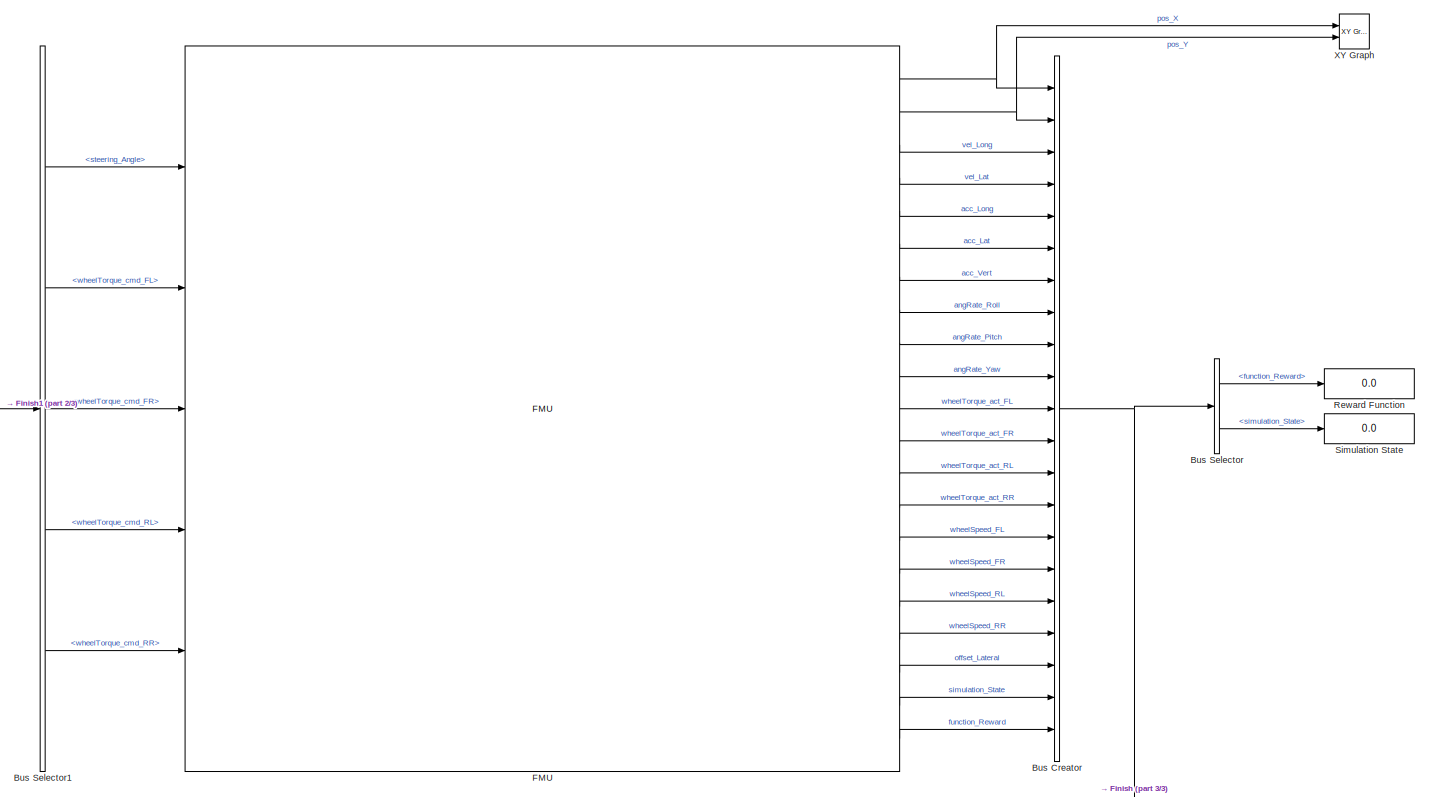
[diagram: root canvas - part 1/3, most of the canvas]
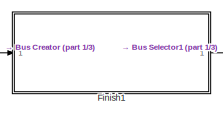
[diagram: root canvas - part 2/3, middle left region]
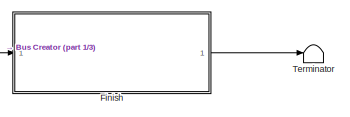
[diagram: root canvas - part 3/3, bottom center region]
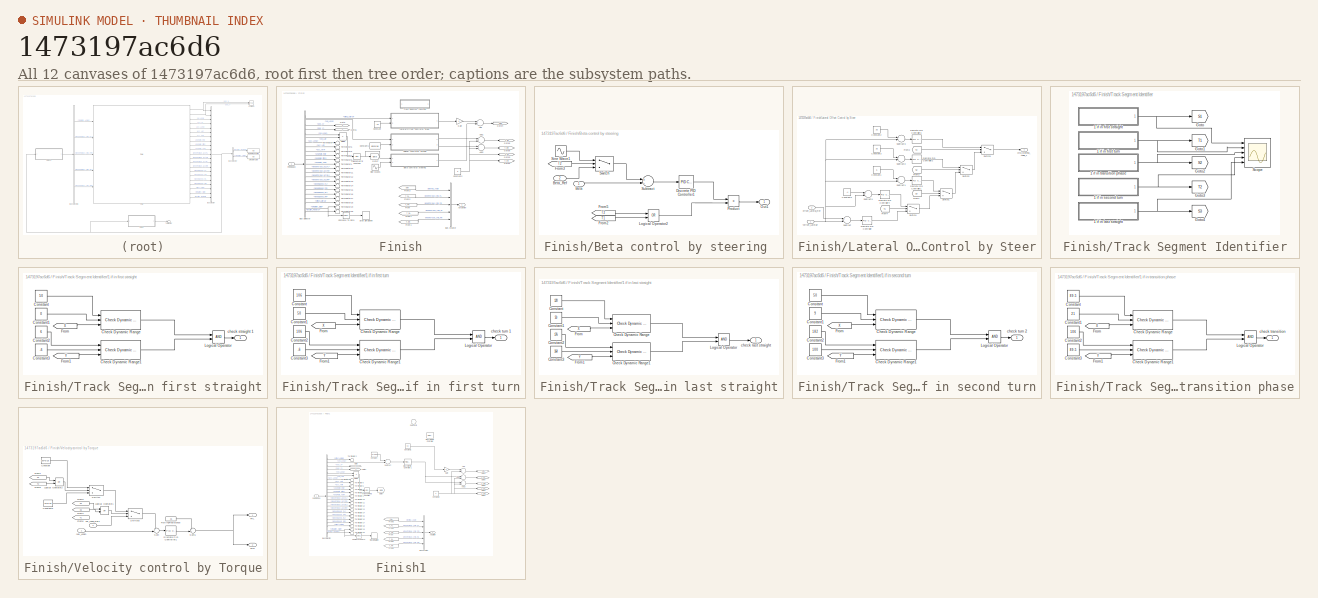
[diagram: thumbnail index - all 12 canvases of the model, root first then tree order]
MODEL slx_1473197ac6d6
KIND model
CONFIG AbsTol = auto
CONFIG EnableMultiTasking = off
CONFIG FixedStep = 0.01
CONFIG MaxStep = auto
CONFIG MinStep = auto
CONFIG RelTol = 1e-3
CONFIG SampleTimeConstraint = Unconstrained
CONFIG Solver = FixedStepDiscrete
CONFIG SolverName = FixedStepDiscrete
CONFIG StartTime = 0.0
CONFIG StopTime = inf
BLOCK [BusCreator] Bus Creator
  DisplayOption = bar
  InheritFromInputs = on
  Inputs = 21
  Ports = [21, 1]
BLOCK [BusSelector] Bus Selector
  OutputAsBus = off
  OutputSignals = function_Reward,simulation_State
  Ports = [1, 2]
BLOCK [BusSelector] Bus Selector1
  OutputAsBus = off
  OutputSignals = steering_Angle,wheelTorque_cmd_FL,wheelTorque_cmd_FR,wheelTorque_cmd_RL,wheelTorque_cmd_RR
  Ports = [1, 5]
BLOCK [FMU] FMU
  FMUDebugLogging = on
  FMUMode = CoSimulation
  FMUName = MED2018_VehicleModel.fmu
  FMUSampleTime = -1
  MaskDisplay = if (exist([Simulink.fileGenControl('get','CacheFolder') '\slprj\_fmu\4f2b449fb32afa678e4265196a9a6b74\MED2018_VehicleModel\model.png'],'file'))\n    image([Simulink.fileGenControl('get','CacheFolder') '\slprj\_fmu\4f2b449fb32afa678e4265196a9a6b74\MED2018_VehicleModel\model.png']);\n    text(0.03, 0.97, 'MED2018.VehicleModel', 'horizontalAlignment', 'left', 'verticalAlignment', 'top');\nelse\n    disp(...<+1077ch>
  MaskPromptString = Communication StepsizeCommunication stepsize between FMU and Simulink
  MaskType = MED2018.VehicleModel [Co-Simulation, v2.0]
  Ports = [5, 21]
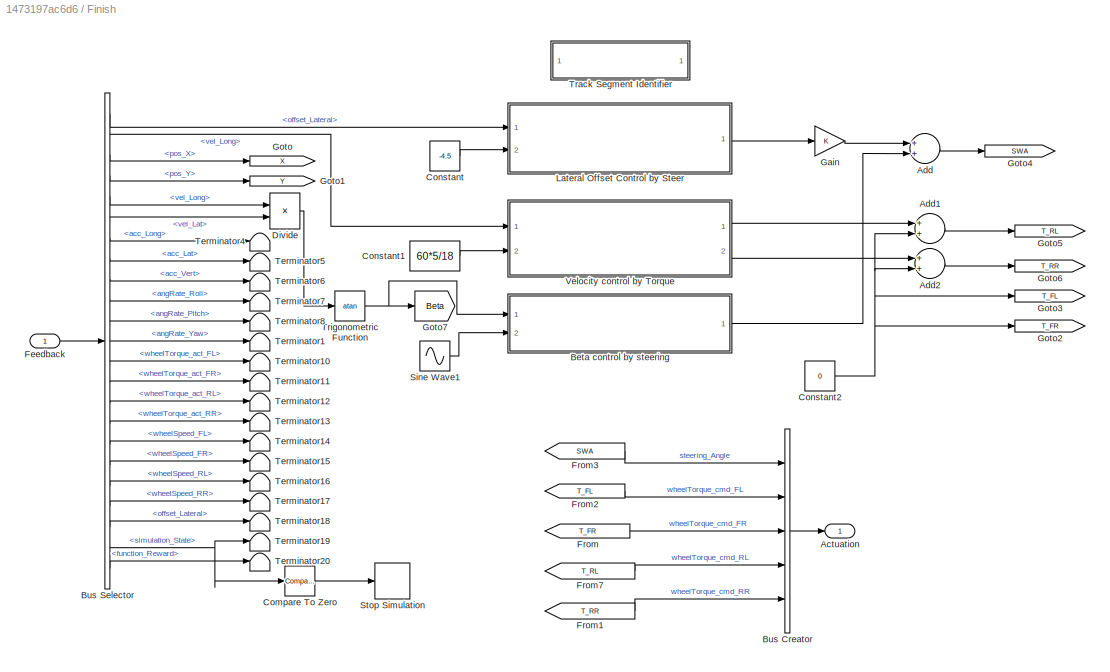
BLOCK [SubSystem] Finish
  Commented = on
  Ports = [1, 1]
  RequestExecContextInheritance = off
  Variant = off
BLOCK [Outport] Finish/Actuation
  IconDisplay = Port number
BLOCK [Sum] Finish/Add
  InputSameDT = off
  OutDataTypeStr = Inherit: Inherit via internal rule
  Ports = [2, 1]
  SaturateOnIntegerOverflow = off
BLOCK [Sum] Finish/Add1
  InputSameDT = off
  OutDataTypeStr = Inherit: Inherit via internal rule
  Ports = [2, 1]
  SaturateOnIntegerOverflow = off
BLOCK [Sum] Finish/Add2
  InputSameDT = off
  OutDataTypeStr = Inherit: Inherit via internal rule
  Ports = [2, 1]
  SaturateOnIntegerOverflow = off
BLOCK [SubSystem] Finish/Beta control by steering 
  Ports = [2, 1]
  RequestExecContextInheritance = off
  Variant = off
BLOCK [Inport] Finish/Beta control by steering /Beta
  IconDisplay = Port number
BLOCK [Inport] Finish/Beta control by steering /Beta_Ref
  IconDisplay = Port number
  Port = 2
BLOCK [Reference] Finish/Beta control by steering /Discrete PID Controller1  REF=simulink/Continuous/PID Controller
  Ports = [1, 1]
  SourceBlock = simulink/Continuous/PID Controller
  SourceProductBaseCode = SL
  SourceProductName = Simulink
  SourceType = PID 1dof
BLOCK [From] Finish/Beta control by steering /From2
  GotoTag = T1
  TagVisibility = global
BLOCK [From] Finish/Beta control by steering /From3
  GotoTag = T2
  TagVisibility = global
BLOCK [From] Finish/Beta control by steering /From5
  GotoTag = T2
  TagVisibility = global
BLOCK [Logic] Finish/Beta control by steering /Logical Operator2
  AllPortsSameDT = off
  Operator = OR
  OutDataTypeStr = boolean
  Ports = [2, 1]
BLOCK [Outport] Finish/Beta control by steering /Out1
  IconDisplay = Port number
BLOCK [Product] Finish/Beta control by steering /Product
  InputSameDT = off
  OutDataTypeStr = Inherit: Inherit via internal rule
  Ports = [2, 1]
  RndMeth = Floor
  SaturateOnIntegerOverflow = off
BLOCK [Sin] Finish/Beta control by steering /Sine Wave1
  Amplitude = -0.1
  Ports = [0, 1]
  SampleTime = 0
BLOCK [Sum] Finish/Beta control by steering /Subtract
  InputSameDT = off
  Inputs = +-
  OutDataTypeStr = Inherit: Inherit via internal rule
  Ports = [2, 1]
  SaturateOnIntegerOverflow = off
BLOCK [Switch] Finish/Beta control by steering /Switch
  Criteria = u2 > Threshold
  InputSameDT = off
  SaturateOnIntegerOverflow = off
BLOCK [BusCreator] Finish/Bus Creator
  DisplayOption = bar
  InheritFromInputs = on
  Inputs = 5
  Ports = [5, 1]
BLOCK [BusSelector] Finish/Bus Selector
  OutputAsBus = off
  OutputSignals = offset_Lateral,vel_Long,pos_X,pos_Y,vel_Long,vel_Lat,acc_Long,acc_Lat,acc_Vert,angRate_Roll,angRate_Pitch,angRate_Yaw,wheelTorque_act_FL,wheelTorque_act_FR,wheelTorque_act_RL,wheelTorque_act_RR,wheelSpeed_FL,wheelSpeed_FR,wheelSpeed_RL,wheelSpeed_RR,offset_Lateral,simulation_State,function_Reward
  Ports = [1, 23]
BLOCK [Reference] Finish/Compare To Zero  REF=simulink/Logic and Bit
Operations/Compare
To Zero
  Ports = [1, 1]
  SourceBlock = simulink/Logic and Bit\nOperations/Compare\nTo Zero
  SourceProductBaseCode = SL
  SourceProductName = Simulink
  SourceType = Compare To Zero
BLOCK [Constant] Finish/Constant
  Value = -4.5
BLOCK [Constant] Finish/Constant1
  Value = 60*5/18
BLOCK [Constant] Finish/Constant2
  Value = 0
BLOCK [Product] Finish/Divide
  InputSameDT = off
  Inputs = /*
  OutDataTypeStr = Inherit: Inherit via internal rule
  Ports = [2, 1]
  RndMeth = Floor
  SaturateOnIntegerOverflow = off
BLOCK [Inport] Finish/Feedback
  IconDisplay = Port number
BLOCK [From] Finish/From
  GotoTag = T_FR
BLOCK [From] Finish/From1
  GotoTag = T_RR
BLOCK [From] Finish/From2
  GotoTag = T_FL
BLOCK [From] Finish/From3
  GotoTag = SWA
BLOCK [From] Finish/From7
  GotoTag = T_RL
BLOCK [Gain] Finish/Gain
  OutDataTypeStr = Inherit: Inherit via internal rule
  ParamDataTypeStr = Inherit: Inherit via internal rule
  SaturateOnIntegerOverflow = off
BLOCK [Goto] Finish/Goto
  GotoTag = X
  TagVisibility = global
BLOCK [Goto] Finish/Goto1
  GotoTag = Y
  TagVisibility = global
BLOCK [Goto] Finish/Goto2
  GotoTag = T_FR
BLOCK [Goto] Finish/Goto3
  GotoTag = T_FL
BLOCK [Goto] Finish/Goto4
  GotoTag = SWA
BLOCK [Goto] Finish/Goto5
  GotoTag = T_RL
BLOCK [Goto] Finish/Goto6
  GotoTag = T_RR
BLOCK [Goto] Finish/Goto7
  GotoTag = Beta
  TagVisibility = global
BLOCK [SubSystem] Finish/Lateral Offset Control by Steer
  Ports = [2, 1]
  RequestExecContextInheritance = off
  Variant = off
BLOCK [Inport] Finish/Lateral Offset Control by Steer/<offset_Lateral>
  IconDisplay = Port number
BLOCK [Constant] Finish/Lateral Offset Control by Steer/Constant1
  Value = 5
BLOCK [Constant] Finish/Lateral Offset Control by Steer/Constant2
  Value = 3.5
BLOCK [Constant] Finish/Lateral Offset Control by Steer/Constant3
  Value = 3.5
BLOCK [Constant] Finish/Lateral Offset Control by Steer/Constant4
  Value = -4
BLOCK [Reference] Finish/Lateral Offset Control by Steer/Discrete PID Controller  REF=simulink/Continuous/PID Controller
  Ports = [1, 1]
  SourceBlock = simulink/Continuous/PID Controller
  SourceProductBaseCode = SL
  SourceProductName = Simulink
  SourceType = PID 1dof
BLOCK [Reference] Finish/Lateral Offset Control by Steer/Discrete PID Controller1  REF=simulink/Continuous/PID Controller
  Ports = [1, 1]
  SourceBlock = simulink/Continuous/PID Controller
  SourceProductBaseCode = SL
  SourceProductName = Simulink
  SourceType = PID 1dof
BLOCK [Reference] Finish/Lateral Offset Control by Steer/Discrete PID Controller2  REF=simulink/Continuous/PID Controller
  Ports = [1, 1]
  SourceBlock = simulink/Continuous/PID Controller
  SourceProductBaseCode = SL
  SourceProductName = Simulink
  SourceType = PID 1dof
BLOCK [Reference] Finish/Lateral Offset Control by Steer/Discrete PID Controller3  REF=simulink/Continuous/PID Controller
  Ports = [1, 1]
  SourceBlock = simulink/Continuous/PID Controller
  SourceProductBaseCode = SL
  SourceProductName = Simulink
  SourceType = PID 1dof
BLOCK [Reference] Finish/Lateral Offset Control by Steer/Discrete PID Controller4  REF=simulink/Continuous/PID Controller
  Ports = [1, 1]
  SourceBlock = simulink/Continuous/PID Controller
  SourceProductBaseCode = SL
  SourceProductName = Simulink
  SourceType = PID 1dof
BLOCK [From] Finish/Lateral Offset Control by Steer/From1
  GotoTag = S3
  TagVisibility = global
BLOCK [From] Finish/Lateral Offset Control by Steer/From2
  GotoTag = T2
  TagVisibility = global
BLOCK [From] Finish/Lateral Offset Control by Steer/From3
  GotoTag = S2
  TagVisibility = global
BLOCK [From] Finish/Lateral Offset Control by Steer/From4
  GotoTag = T1
  TagVisibility = global
BLOCK [Sum] Finish/Lateral Offset Control by Steer/Subtract
  InputSameDT = off
  Inputs = +-
  OutDataTypeStr = Inherit: Inherit via internal rule
  Ports = [2, 1]
  SaturateOnIntegerOverflow = off
BLOCK [Sum] Finish/Lateral Offset Control by Steer/Subtract1
  InputSameDT = off
  Inputs = +-
  OutDataTypeStr = Inherit: Inherit via internal rule
  Ports = [2, 1]
  SaturateOnIntegerOverflow = off
BLOCK [Sum] Finish/Lateral Offset Control by Steer/Subtract2
  InputSameDT = off
  Inputs = +-
  OutDataTypeStr = Inherit: Inherit via internal rule
  Ports = [2, 1]
  SaturateOnIntegerOverflow = off
BLOCK [Sum] Finish/Lateral Offset Control by Steer/Subtract3
  InputSameDT = off
  Inputs = +-
  OutDataTypeStr = Inherit: Inherit via internal rule
  Ports = [2, 1]
  SaturateOnIntegerOverflow = off
BLOCK [Sum] Finish/Lateral Offset Control by Steer/Subtract4
  InputSameDT = off
  Inputs = +-
  OutDataTypeStr = Inherit: Inherit via internal rule
  Ports = [2, 1]
  SaturateOnIntegerOverflow = off
BLOCK [Switch] Finish/Lateral Offset Control by Steer/Switch1
  Criteria = u2 > Threshold
  InputSameDT = off
  SaturateOnIntegerOverflow = off
BLOCK [Switch] Finish/Lateral Offset Control by Steer/Switch2
  Criteria = u2 > Threshold
  InputSameDT = off
  SaturateOnIntegerOverflow = off
BLOCK [Switch] Finish/Lateral Offset Control by Steer/Switch3
  Criteria = u2 > Threshold
  InputSameDT = off
  SaturateOnIntegerOverflow = off
BLOCK [Switch] Finish/Lateral Offset Control by Steer/Switch4
  Criteria = u2 > Threshold
  InputSameDT = off
  SaturateOnIntegerOverflow = off
BLOCK [Outport] Finish/Lateral Offset Control by Steer/cmd_steering_Angle_1
  IconDisplay = Port number
BLOCK [Inport] Finish/Lateral Offset Control by Steer/offset_Lateral_Ref
  IconDisplay = Port number
  Port = 2
BLOCK [Sin] Finish/Sine Wave1
  Amplitude = 0.1
  Ports = [0, 1]
  SampleTime = 0
BLOCK [Stop] Finish/Stop Simulation
BLOCK [Terminator] Finish/Terminator1
BLOCK [Terminator] Finish/Terminator10
BLOCK [Terminator] Finish/Terminator11
BLOCK [Terminator] Finish/Terminator12
BLOCK [Terminator] Finish/Terminator13
BLOCK [Terminator] Finish/Terminator14
BLOCK [Terminator] Finish/Terminator15
BLOCK [Terminator] Finish/Terminator16
BLOCK [Terminator] Finish/Terminator17
BLOCK [Terminator] Finish/Terminator18
BLOCK [Terminator] Finish/Terminator19
BLOCK [Terminator] Finish/Terminator20
BLOCK [Terminator] Finish/Terminator4
BLOCK [Terminator] Finish/Terminator5
BLOCK [Terminator] Finish/Terminator6
BLOCK [Terminator] Finish/Terminator7
BLOCK [Terminator] Finish/Terminator8
BLOCK [SubSystem] Finish/Track Segment Identifier
  Ports = []
  RequestExecContextInheritance = off
  Variant = off
BLOCK [SubSystem] Finish/Track Segment Identifier/1 if in first straight
  Ports = [0, 1]
  RequestExecContextInheritance = off
  Variant = off
BLOCK [Reference] Finish/Track Segment Identifier/1 if in first straight/Check Dynamic Range  REF=simulink/Model
Verification/Check 
Dynamic Range
  Description = min < u < max
  Ports = [3, 1]
  SourceBlock = simulink/Model\nVerification/Check \nDynamic Range
  SourceProductBaseCode = SL
  SourceProductName = Simulink
  SourceType = Checks_DRange
BLOCK [Reference] Finish/Track Segment Identifier/1 if in first straight/Check Dynamic Range1  REF=simulink/Model
Verification/Check 
Dynamic Range
  Description = min < u < max
  Ports = [3, 1]
  SourceBlock = simulink/Model\nVerification/Check \nDynamic Range
  SourceProductBaseCode = SL
  SourceProductName = Simulink
  SourceType = Checks_DRange
BLOCK [Constant] Finish/Track Segment Identifier/1 if in first straight/Constant
  Value = 50
BLOCK [Constant] Finish/Track Segment Identifier/1 if in first straight/Constant1
  Value = 0
BLOCK [Constant] Finish/Track Segment Identifier/1 if in first straight/Constant2
  Value = 6
BLOCK [Constant] Finish/Track Segment Identifier/1 if in first straight/Constant3
  Value = -6
BLOCK [From] Finish/Track Segment Identifier/1 if in first straight/From
  GotoTag = X
  TagVisibility = global
BLOCK [From] Finish/Track Segment Identifier/1 if in first straight/From1
  GotoTag = Y
  TagVisibility = global
BLOCK [Logic] Finish/Track Segment Identifier/1 if in first straight/Logical Operator
  AllPortsSameDT = off
  OutDataTypeStr = boolean
  Ports = [2, 1]
BLOCK [Outport] Finish/Track Segment Identifier/1 if in first straight/check straight 1
  IconDisplay = Port number
BLOCK [SubSystem] Finish/Track Segment Identifier/1 if in first turn
  Ports = [0, 1]
  RequestExecContextInheritance = off
  Variant = off
BLOCK [Reference] Finish/Track Segment Identifier/1 if in first turn/Check Dynamic Range  REF=simulink/Model
Verification/Check 
Dynamic Range
  Description = min < u < max
  Ports = [3, 1]
  SourceBlock = simulink/Model\nVerification/Check \nDynamic Range
  SourceProductBaseCode = SL
  SourceProductName = Simulink
  SourceType = Checks_DRange
BLOCK [Reference] Finish/Track Segment Identifier/1 if in first turn/Check Dynamic Range1  REF=simulink/Model
Verification/Check 
Dynamic Range
  Description = min < u < max
  Ports = [3, 1]
  SourceBlock = simulink/Model\nVerification/Check \nDynamic Range
  SourceProductBaseCode = SL
  SourceProductName = Simulink
  SourceType = Checks_DRange
BLOCK [Constant] Finish/Track Segment Identifier/1 if in first turn/Constant
  Value = 106
BLOCK [Constant] Finish/Track Segment Identifier/1 if in first turn/Constant1
  Value = 50
BLOCK [Constant] Finish/Track Segment Identifier/1 if in first turn/Constant2
  Value = 106
BLOCK [Constant] Finish/Track Segment Identifier/1 if in first turn/Constant3
  Value = -6
BLOCK [From] Finish/Track Segment Identifier/1 if in first turn/From
  GotoTag = X
  TagVisibility = global
BLOCK [From] Finish/Track Segment Identifier/1 if in first turn/From1
  GotoTag = Y
  TagVisibility = global
BLOCK [Logic] Finish/Track Segment Identifier/1 if in first turn/Logical Operator
  AllPortsSameDT = off
  OutDataTypeStr = boolean
  Ports = [2, 1]
BLOCK [Outport] Finish/Track Segment Identifier/1 if in first turn/check turn 1
  IconDisplay = Port number
BLOCK [SubSystem] Finish/Track Segment Identifier/1 if in last straight
  Ports = [0, 1]
  RequestExecContextInheritance = off
  Variant = off
BLOCK [Reference] Finish/Track Segment Identifier/1 if in last straight/Check Dynamic Range  REF=simulink/Model
Verification/Check 
Dynamic Range
  Description = min < u < max
  Ports = [3, 1]
  SourceBlock = simulink/Model\nVerification/Check \nDynamic Range
  SourceProductBaseCode = SL
  SourceProductName = Simulink
  SourceType = Checks_DRange
BLOCK [Reference] Finish/Track Segment Identifier/1 if in last straight/Check Dynamic Range1  REF=simulink/Model
Verification/Check 
Dynamic Range
  Description = min < u < max
  Ports = [3, 1]
  SourceBlock = simulink/Model\nVerification/Check \nDynamic Range
  SourceProductBaseCode = SL
  SourceProductName = Simulink
  SourceType = Checks_DRange
BLOCK [Constant] Finish/Track Segment Identifier/1 if in last straight/Constant
  Value = 120
BLOCK [Constant] Finish/Track Segment Identifier/1 if in last straight/Constant1
  Value = 50
BLOCK [Constant] Finish/Track Segment Identifier/1 if in last straight/Constant2
  Value = 176
BLOCK [Constant] Finish/Track Segment Identifier/1 if in last straight/Constant3
  Value = 164
BLOCK [From] Finish/Track Segment Identifier/1 if in last straight/From
  GotoTag = X
  TagVisibility = global
BLOCK [From] Finish/Track Segment Identifier/1 if in last straight/From1
  GotoTag = Y
  TagVisibility = global
BLOCK [Logic] Finish/Track Segment Identifier/1 if in last straight/Logical Operator
  AllPortsSameDT = off
  OutDataTypeStr = boolean
  Ports = [2, 1]
BLOCK [Outport] Finish/Track Segment Identifier/1 if in last straight/check last straight
  IconDisplay = Port number
BLOCK [SubSystem] Finish/Track Segment Identifier/1 if in second turn
  Ports = [0, 1]
  RequestExecContextInheritance = off
  Variant = off
BLOCK [Reference] Finish/Track Segment Identifier/1 if in second turn/Check Dynamic Range  REF=simulink/Model
Verification/Check 
Dynamic Range
  Description = min < u < max
  Ports = [3, 1]
  SourceBlock = simulink/Model\nVerification/Check \nDynamic Range
  SourceProductBaseCode = SL
  SourceProductName = Simulink
  SourceType = Checks_DRange
BLOCK [Reference] Finish/Track Segment Identifier/1 if in second turn/Check Dynamic Range1  REF=simulink/Model
Verification/Check 
Dynamic Range
  Description = min < u < max
  Ports = [3, 1]
  SourceBlock = simulink/Model\nVerification/Check \nDynamic Range
  SourceProductBaseCode = SL
  SourceProductName = Simulink
  SourceType = Checks_DRange
BLOCK [Constant] Finish/Track Segment Identifier/1 if in second turn/Constant
  Value = 50
BLOCK [Constant] Finish/Track Segment Identifier/1 if in second turn/Constant1
  Value = 9
BLOCK [Constant] Finish/Track Segment Identifier/1 if in second turn/Constant2
  Value = 182
BLOCK [Constant] Finish/Track Segment Identifier/1 if in second turn/Constant3
  Value = 100
BLOCK [From] Finish/Track Segment Identifier/1 if in second turn/From
  GotoTag = X
  TagVisibility = global
BLOCK [From] Finish/Track Segment Identifier/1 if in second turn/From1
  GotoTag = Y
  TagVisibility = global
BLOCK [Logic] Finish/Track Segment Identifier/1 if in second turn/Logical Operator
  AllPortsSameDT = off
  OutDataTypeStr = boolean
  Ports = [2, 1]
BLOCK [Outport] Finish/Track Segment Identifier/1 if in second turn/check turn 2
  IconDisplay = Port number
BLOCK [SubSystem] Finish/Track Segment Identifier/1 if in transition phase
  Ports = [0, 1]
  RequestExecContextInheritance = off
  Variant = off
BLOCK [Reference] Finish/Track Segment Identifier/1 if in transition phase/Check Dynamic Range  REF=simulink/Model
Verification/Check 
Dynamic Range
  Description = min < u < max
  Ports = [3, 1]
  SourceBlock = simulink/Model\nVerification/Check \nDynamic Range
  SourceProductBaseCode = SL
  SourceProductName = Simulink
  SourceType = Checks_DRange
BLOCK [Reference] Finish/Track Segment Identifier/1 if in transition phase/Check Dynamic Range1  REF=simulink/Model
Verification/Check 
Dynamic Range
  Description = min < u < max
  Ports = [3, 1]
  SourceBlock = simulink/Model\nVerification/Check \nDynamic Range
  SourceProductBaseCode = SL
  SourceProductName = Simulink
  SourceType = Checks_DRange
BLOCK [Constant] Finish/Track Segment Identifier/1 if in transition phase/Constant
  Value = 89.5
BLOCK [Constant] Finish/Track Segment Identifier/1 if in transition phase/Constant1
  Value = 21
BLOCK [Constant] Finish/Track Segment Identifier/1 if in transition phase/Constant2
  Value = 106
BLOCK [Constant] Finish/Track Segment Identifier/1 if in transition phase/Constant3
  Value = 89.5
BLOCK [From] Finish/Track Segment Identifier/1 if in transition phase/From
  GotoTag = X
  TagVisibility = global
BLOCK [From] Finish/Track Segment Identifier/1 if in transition phase/From1
  GotoTag = Y
  TagVisibility = global
BLOCK [Logic] Finish/Track Segment Identifier/1 if in transition phase/Logical Operator
  AllPortsSameDT = off
  OutDataTypeStr = boolean
  Ports = [2, 1]
BLOCK [Outport] Finish/Track Segment Identifier/1 if in transition phase/check transition
  IconDisplay = Port number
BLOCK [Goto] Finish/Track Segment Identifier/Goto
  GotoTag = S1
  TagVisibility = global
BLOCK [Goto] Finish/Track Segment Identifier/Goto1
  GotoTag = T1
  TagVisibility = global
BLOCK [Goto] Finish/Track Segment Identifier/Goto2
  GotoTag = S2
  TagVisibility = global
BLOCK [Goto] Finish/Track Segment Identifier/Goto3
  GotoTag = T2
  TagVisibility = global
BLOCK [Goto] Finish/Track Segment Identifier/Goto4
  GotoTag = S3
  TagVisibility = global
BLOCK [Scope] Finish/Track Segment Identifier/Scope
  NumInputPorts = 5
  Ports = [5]
  ScopeSpecificationString = Simulink.scopes.TimeScopeBlockCfg('CurrentConfiguration', extmgr.ConfigurationSet(extmgr.Configuration('Core','General UI',true),extmgr.Configuration('Core','Source UI',true),extmgr.Configuration('Sources','WiredSimulink',true),extmgr.Configuration('Visuals','Time Domain',true,'SerializedDisplays',{struct('MinYLimReal','-0.125','MaxYLimReal','1.125','YLabelReal','','MinYLimMag','0.00000','MaxYLimM...<+1476ch>
BLOCK [Trigonometry] Finish/Trigonometric Function
  Operator = atan
  Ports = [1, 1]
BLOCK [SubSystem] Finish/Velocity control by Torque
  Ports = [2, 2]
  RequestExecContextInheritance = off
  Variant = off
BLOCK [Inport] Finish/Velocity control by Torque/<vel_Long>
  IconDisplay = Port number
BLOCK [Constant] Finish/Velocity control by Torque/Constant
  Value = 50*5/18
BLOCK [Constant] Finish/Velocity control by Torque/Constant6
  Value = 70*5/18
BLOCK [Reference] Finish/Velocity control by Torque/Discrete PID Controller1  REF=simulink/Continuous/PID Controller
  Ports = [1, 1]
  SourceBlock = simulink/Continuous/PID Controller
  SourceProductBaseCode = SL
  SourceProductName = Simulink
  SourceType = PID 1dof
BLOCK [From] Finish/Velocity control by Torque/From1
  GotoTag = S2
  TagVisibility = global
BLOCK [From] Finish/Velocity control by Torque/From3
  GotoTag = S2
  TagVisibility = global
BLOCK [From] Finish/Velocity control by Torque/From4
  GotoTag = S3
  TagVisibility = global
BLOCK [From] Finish/Velocity control by Torque/From5
  GotoTag = T2
  TagVisibility = global
BLOCK [From] Finish/Velocity control by Torque/From6
  GotoTag = T1
  TagVisibility = global
BLOCK [Logic] Finish/Velocity control by Torque/Logical Operator1
  AllPortsSameDT = off
  Operator = OR
  OutDataTypeStr = boolean
  Ports = [2, 1]
BLOCK [Logic] Finish/Velocity control by Torque/Logical Operator2
  AllPortsSameDT = off
  Operator = OR
  OutDataTypeStr = boolean
  Ports = [2, 1]
BLOCK [Constant] Finish/Velocity control by Torque/RollingResistance
  Value = 25
BLOCK [Sum] Finish/Velocity control by Torque/Sum
  IconShape = round
  InputSameDT = off
  Inputs = +-|
  OutDataTypeStr = Inherit: Inherit via internal rule
  Ports = [2, 1]
  SaturateOnIntegerOverflow = off
BLOCK [Sum] Finish/Velocity control by Torque/Sum1
  IconShape = round
  InputSameDT = off
  Inputs = ++|
  OutDataTypeStr = Inherit: Inherit via internal rule
  Ports = [2, 1]
  SaturateOnIntegerOverflow = off
BLOCK [Switch] Finish/Velocity control by Torque/Switch
  Criteria = u2 > Threshold
  InputSameDT = off
  SaturateOnIntegerOverflow = off
BLOCK [Switch] Finish/Velocity control by Torque/Switch3
  Criteria = u2 > Threshold
  InputSameDT = off
  SaturateOnIntegerOverflow = off
BLOCK [Outport] Finish/Velocity control by Torque/TRL
  IconDisplay = Port number
BLOCK [Outport] Finish/Velocity control by Torque/TRR
  IconDisplay = Port number
  Port = 2
BLOCK [Inport] Finish/Velocity control by Torque/vel_Long_Ref1
  IconDisplay = Port number
  Port = 2
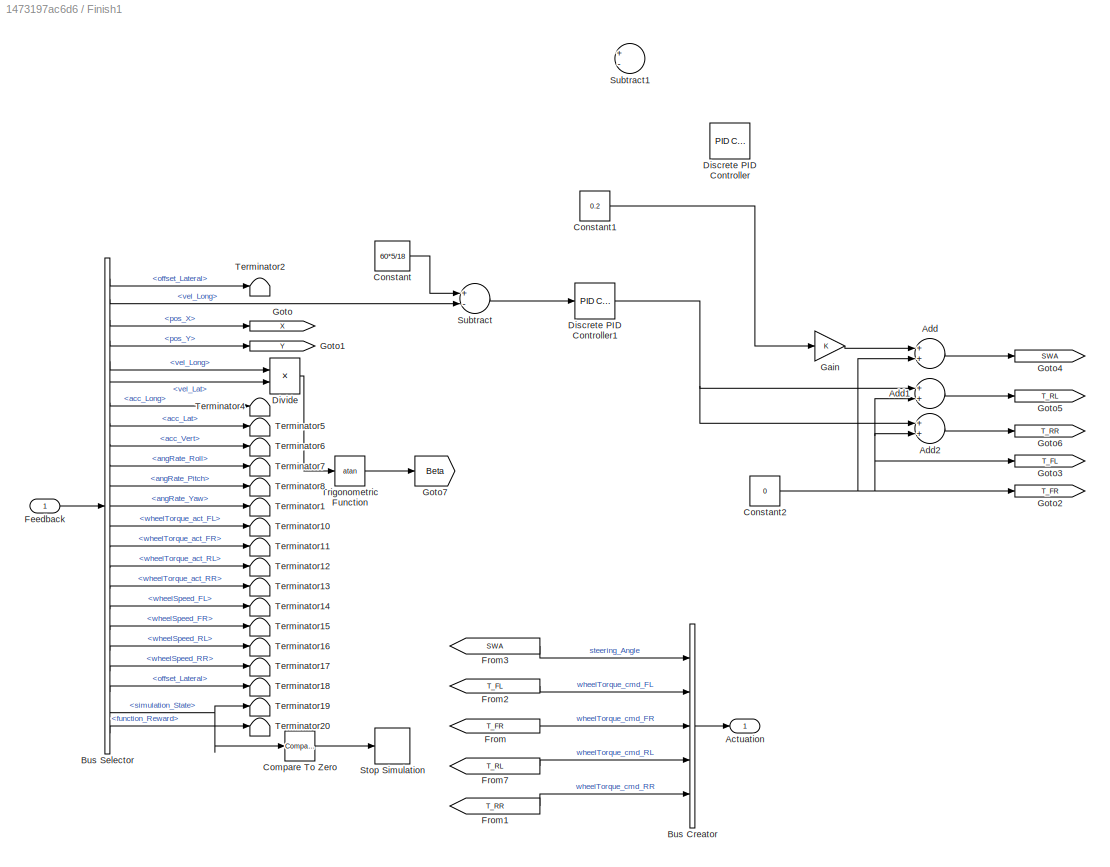
BLOCK [SubSystem] Finish1
  Ports = [1, 1]
  RequestExecContextInheritance = off
  Variant = off
BLOCK [Outport] Finish1/Actuation
  IconDisplay = Port number
BLOCK [Sum] Finish1/Add
  InputSameDT = off
  OutDataTypeStr = Inherit: Inherit via internal rule
  Ports = [2, 1]
  SaturateOnIntegerOverflow = off
BLOCK [Sum] Finish1/Add1
  InputSameDT = off
  OutDataTypeStr = Inherit: Inherit via internal rule
  Ports = [2, 1]
  SaturateOnIntegerOverflow = off
BLOCK [Sum] Finish1/Add2
  InputSameDT = off
  OutDataTypeStr = Inherit: Inherit via internal rule
  Ports = [2, 1]
  SaturateOnIntegerOverflow = off
BLOCK [BusCreator] Finish1/Bus Creator
  DisplayOption = bar
  InheritFromInputs = on
  Inputs = 5
  Ports = [5, 1]
BLOCK [BusSelector] Finish1/Bus Selector
  OutputAsBus = off
  OutputSignals = offset_Lateral,vel_Long,pos_X,pos_Y,vel_Long,vel_Lat,acc_Long,acc_Lat,acc_Vert,angRate_Roll,angRate_Pitch,angRate_Yaw,wheelTorque_act_FL,wheelTorque_act_FR,wheelTorque_act_RL,wheelTorque_act_RR,wheelSpeed_FL,wheelSpeed_FR,wheelSpeed_RL,wheelSpeed_RR,offset_Lateral,simulation_State,function_Reward
  Ports = [1, 23]
BLOCK [Reference] Finish1/Compare To Zero  REF=simulink/Logic and Bit
Operations/Compare
To Zero
  Commented = on
  Ports = [1, 1]
  SourceBlock = simulink/Logic and Bit\nOperations/Compare\nTo Zero
  SourceProductBaseCode = SL
  SourceProductName = Simulink
  SourceType = Compare To Zero
BLOCK [Constant] Finish1/Constant
  Value = 60*5/18
BLOCK [Constant] Finish1/Constant1
  Value = 0.2
BLOCK [Constant] Finish1/Constant2
  Value = 0
BLOCK [Reference] Finish1/Discrete PID Controller  REF=simulink/Continuous/PID Controller
  Commented = on
  Ports = [1, 1]
  SourceBlock = simulink/Continuous/PID Controller
  SourceProductBaseCode = SL
  SourceProductName = Simulink
  SourceType = PID 1dof
BLOCK [Reference] Finish1/Discrete PID Controller1  REF=simulink/Continuous/PID Controller
  Ports = [1, 1]
  SourceBlock = simulink/Continuous/PID Controller
  SourceProductBaseCode = SL
  SourceProductName = Simulink
  SourceType = PID 1dof
BLOCK [Product] Finish1/Divide
  InputSameDT = off
  Inputs = /*
  OutDataTypeStr = Inherit: Inherit via internal rule
  Ports = [2, 1]
  RndMeth = Floor
  SaturateOnIntegerOverflow = off
BLOCK [Inport] Finish1/Feedback
  IconDisplay = Port number
BLOCK [From] Finish1/From
  GotoTag = T_FR
BLOCK [From] Finish1/From1
  GotoTag = T_RR
BLOCK [From] Finish1/From2
  GotoTag = T_FL
BLOCK [From] Finish1/From3
  GotoTag = SWA
BLOCK [From] Finish1/From7
  GotoTag = T_RL
BLOCK [Gain] Finish1/Gain
  OutDataTypeStr = Inherit: Inherit via internal rule
  ParamDataTypeStr = Inherit: Inherit via internal rule
  SaturateOnIntegerOverflow = off
BLOCK [Goto] Finish1/Goto
  GotoTag = X
  TagVisibility = global
BLOCK [Goto] Finish1/Goto1
  GotoTag = Y
  TagVisibility = global
BLOCK [Goto] Finish1/Goto2
  GotoTag = T_FR
BLOCK [Goto] Finish1/Goto3
  GotoTag = T_FL
BLOCK [Goto] Finish1/Goto4
  GotoTag = SWA
BLOCK [Goto] Finish1/Goto5
  GotoTag = T_RL
BLOCK [Goto] Finish1/Goto6
  GotoTag = T_RR
BLOCK [Goto] Finish1/Goto7
  GotoTag = Beta
  TagVisibility = global
BLOCK [Stop] Finish1/Stop Simulation
  Commented = on
BLOCK [Sum] Finish1/Subtract
  InputSameDT = off
  Inputs = +-
  OutDataTypeStr = Inherit: Inherit via internal rule
  Ports = [2, 1]
  SaturateOnIntegerOverflow = off
BLOCK [Sum] Finish1/Subtract1
  Commented = on
  InputSameDT = off
  Inputs = +-
  OutDataTypeStr = Inherit: Inherit via internal rule
  Ports = [2, 1]
  SaturateOnIntegerOverflow = off
BLOCK [Terminator] Finish1/Terminator1
BLOCK [Terminator] Finish1/Terminator10
BLOCK [Terminator] Finish1/Terminator11
BLOCK [Terminator] Finish1/Terminator12
BLOCK [Terminator] Finish1/Terminator13
BLOCK [Terminator] Finish1/Terminator14
BLOCK [Terminator] Finish1/Terminator15
BLOCK [Terminator] Finish1/Terminator16
BLOCK [Terminator] Finish1/Terminator17
BLOCK [Terminator] Finish1/Terminator18
BLOCK [Terminator] Finish1/Terminator19
BLOCK [Terminator] Finish1/Terminator2
BLOCK [Terminator] Finish1/Terminator20
BLOCK [Terminator] Finish1/Terminator4
BLOCK [Terminator] Finish1/Terminator5
BLOCK [Terminator] Finish1/Terminator6
BLOCK [Terminator] Finish1/Terminator7
BLOCK [Terminator] Finish1/Terminator8
BLOCK [Trigonometry] Finish1/Trigonometric Function
  Operator = atan
  Ports = [1, 1]
BLOCK [Display] Reward Function
  Decimation = 1
  Ports = [1]
BLOCK [Display] Simulation State
  Decimation = 1
  Ports = [1]
BLOCK [Terminator] Terminator
BLOCK [Reference] XY Graph  REF=simulink/Sinks/XY Graph
  Ports = [2]
  SourceBlock = simulink/Sinks/XY Graph
  SourceProductBaseCode = SL
  SourceProductName = Simulink
  SourceType = XY scope.
NET Bus Creator:1 -> Bus Selector:1, Finish1:1, Finish:1
LINE Bus Selector1:1 -> FMU:1
LINE Bus Selector1:2 -> FMU:2
LINE Bus Selector1:3 -> FMU:3
LINE Bus Selector1:4 -> FMU:4
LINE Bus Selector1:5 -> FMU:5
LINE Bus Selector:1 -> Reward Function:1
LINE Bus Selector:2 -> Simulation State:1
NET FMU:1 -> Bus Creator:1, XY Graph:1
LINE FMU:10 -> Bus Creator:10
LINE FMU:11 -> Bus Creator:11
LINE FMU:12 -> Bus Creator:12
LINE FMU:13 -> Bus Creator:13
LINE FMU:14 -> Bus Creator:14
LINE FMU:15 -> Bus Creator:15
LINE FMU:16 -> Bus Creator:16
LINE FMU:17 -> Bus Creator:17
LINE FMU:18 -> Bus Creator:18
LINE FMU:19 -> Bus Creator:19
NET FMU:2 -> Bus Creator:2, XY Graph:2
LINE FMU:20 -> Bus Creator:20
LINE FMU:21 -> Bus Creator:21
LINE FMU:3 -> Bus Creator:3
LINE FMU:4 -> Bus Creator:4
LINE FMU:5 -> Bus Creator:5
LINE FMU:6 -> Bus Creator:6
LINE FMU:7 -> Bus Creator:7
LINE FMU:8 -> Bus Creator:8
LINE FMU:9 -> Bus Creator:9
LINE Finish/Add1:1 -> Finish/Goto5:1
LINE Finish/Add2:1 -> Finish/Goto6:1
LINE Finish/Add:1 -> Finish/Goto4:1
LINE Finish/Beta control by steering /Beta:1 -> Finish/Beta control by steering /Subtract:2
LINE Finish/Beta control by steering /Beta_Ref:1 -> Finish/Beta control by steering /Switch:3
LINE Finish/Beta control by steering /Discrete PID Controller1:1 -> Finish/Beta control by steering /Product:1
LINE Finish/Beta control by steering /From2:1 -> Finish/Beta control by steering /Logical Operator2:2
LINE Finish/Beta control by steering /From3:1 -> Finish/Beta control by steering /Switch:2
LINE Finish/Beta control by steering /From5:1 -> Finish/Beta control by steering /Logical Operator2:1
LINE Finish/Beta control by steering /Logical Operator2:1 -> Finish/Beta control by steering /Product:2
LINE Finish/Beta control by steering /Product:1 -> Finish/Beta control by steering /Out1:1
LINE Finish/Beta control by steering /Sine Wave1:1 -> Finish/Beta control by steering /Switch:1
LINE Finish/Beta control by steering /Subtract:1 -> Finish/Beta control by steering /Discrete PID Controller1:1
LINE Finish/Beta control by steering /Switch:1 -> Finish/Beta control by steering /Subtract:1
LINE Finish/Beta control by steering :1 -> Finish/Add:2
LINE Finish/Bus Creator:1 -> Finish/Actuation:1
LINE Finish/Bus Selector:1 -> Finish/Lateral Offset Control by Steer:1
LINE Finish/Bus Selector:10 -> Finish/Terminator7:1
LINE Finish/Bus Selector:11 -> Finish/Terminator8:1
LINE Finish/Bus Selector:12 -> Finish/Terminator1:1
LINE Finish/Bus Selector:13 -> Finish/Terminator10:1
LINE Finish/Bus Selector:14 -> Finish/Terminator11:1
LINE Finish/Bus Selector:15 -> Finish/Terminator12:1
LINE Finish/Bus Selector:16 -> Finish/Terminator13:1
LINE Finish/Bus Selector:17 -> Finish/Terminator14:1
LINE Finish/Bus Selector:18 -> Finish/Terminator15:1
LINE Finish/Bus Selector:19 -> Finish/Terminator16:1
LINE Finish/Bus Selector:2 -> Finish/Velocity control by Torque:1
LINE Finish/Bus Selector:20 -> Finish/Terminator17:1
LINE Finish/Bus Selector:21 -> Finish/Terminator18:1
NET Finish/Bus Selector:22 -> Finish/Compare To Zero:1, Finish/Terminator19:1
LINE Finish/Bus Selector:23 -> Finish/Terminator20:1
LINE Finish/Bus Selector:3 -> Finish/Goto:1
LINE Finish/Bus Selector:4 -> Finish/Goto1:1
LINE Finish/Bus Selector:5 -> Finish/Divide:1
LINE Finish/Bus Selector:6 -> Finish/Divide:2
LINE Finish/Bus Selector:7 -> Finish/Terminator4:1
LINE Finish/Bus Selector:8 -> Finish/Terminator5:1
LINE Finish/Bus Selector:9 -> Finish/Terminator6:1
LINE Finish/Compare To Zero:1 -> Finish/Stop Simulation:1
LINE Finish/Constant1:1 -> Finish/Velocity control by Torque:2
NET Finish/Constant2:1 -> Finish/Add1:2, Finish/Add2:2, Finish/Goto2:1, Finish/Goto3:1
LINE Finish/Constant:1 -> Finish/Lateral Offset Control by Steer:2
LINE Finish/Divide:1 -> Finish/Trigonometric Function:1
LINE Finish/Feedback:1 -> Finish/Bus Selector:1
LINE Finish/From1:1 -> Finish/Bus Creator:5
LINE Finish/From2:1 -> Finish/Bus Creator:2
LINE Finish/From3:1 -> Finish/Bus Creator:1
LINE Finish/From7:1 -> Finish/Bus Creator:4
LINE Finish/From:1 -> Finish/Bus Creator:3
LINE Finish/Gain:1 -> Finish/Add:1
NET Finish/Lateral Offset Control by Steer/<offset_Lateral>:1 -> Finish/Lateral Offset Control by Steer/Subtract1:2, Finish/Lateral Offset Control by Steer/Subtract2:2, Finish/Lateral Offset Control by Steer/Subtract3:2, Finish/Lateral Offset Control by Steer/Subtract4:2, Finish/Lateral Offset Control by Steer/Subtract:2
LINE Finish/Lateral Offset Control by Steer/Constant1:1 -> Finish/Lateral Offset Control by Steer/Subtract1:1
LINE Finish/Lateral Offset Control by Steer/Constant2:1 -> Finish/Lateral Offset Control by Steer/Subtract3:1
LINE Finish/Lateral Offset Control by Steer/Constant3:1 -> Finish/Lateral Offset Control by Steer/Subtract2:1
LINE Finish/Lateral Offset Control by Steer/Constant4:1 -> Finish/Lateral Offset Control by Steer/Subtract4:1
LINE Finish/Lateral Offset Control by Steer/Discrete PID Controller1:1 -> Finish/Lateral Offset Control by Steer/Switch1:1
LINE Finish/Lateral Offset Control by Steer/Discrete PID Controller2:1 -> Finish/Lateral Offset Control by Steer/Switch2:1
LINE Finish/Lateral Offset Control by Steer/Discrete PID Controller3:1 -> Finish/Lateral Offset Control by Steer/Switch3:1
LINE Finish/Lateral Offset Control by Steer/Discrete PID Controller4:1 -> Finish/Lateral Offset Control by Steer/Switch4:1
LINE Finish/Lateral Offset Control by Steer/Discrete PID Controller:1 -> Finish/Lateral Offset Control by Steer/Switch4:3
LINE Finish/Lateral Offset Control by Steer/From1:1 -> Finish/Lateral Offset Control by Steer/Switch1:2
LINE Finish/Lateral Offset Control by Steer/From2:1 -> Finish/Lateral Offset Control by Steer/Switch3:2
LINE Finish/Lateral Offset Control by Steer/From3:1 -> Finish/Lateral Offset Control by Steer/Switch2:2
LINE Finish/Lateral Offset Control by Steer/From4:1 -> Finish/Lateral Offset Control by Steer/Switch4:2
LINE Finish/Lateral Offset Control by Steer/Subtract1:1 -> Finish/Lateral Offset Control by Steer/Discrete PID Controller1:1
LINE Finish/Lateral Offset Control by Steer/Subtract2:1 -> Finish/Lateral Offset Control by Steer/Discrete PID Controller2:1
LINE Finish/Lateral Offset Control by Steer/Subtract3:1 -> Finish/Lateral Offset Control by Steer/Discrete PID Controller3:1
LINE Finish/Lateral Offset Control by Steer/Subtract4:1 -> Finish/Lateral Offset Control by Steer/Discrete PID Controller4:1
LINE Finish/Lateral Offset Control by Steer/Subtract:1 -> Finish/Lateral Offset Control by Steer/Discrete PID Controller:1
LINE Finish/Lateral Offset Control by Steer/Switch1:1 -> Finish/Lateral Offset Control by Steer/Switch2:3
LINE Finish/Lateral Offset Control by Steer/Switch2:1 -> Finish/Lateral Offset Control by Steer/Switch3:3
LINE Finish/Lateral Offset Control by Steer/Switch3:1 -> Finish/Lateral Offset Control by Steer/cmd_steering_Angle_1:1
LINE Finish/Lateral Offset Control by Steer/Switch4:1 -> Finish/Lateral Offset Control by Steer/Switch1:3
LINE Finish/Lateral Offset Control by Steer/offset_Lateral_Ref:1 -> Finish/Lateral Offset Control by Steer/Subtract:1
LINE Finish/Lateral Offset Control by Steer:1 -> Finish/Gain:1
LINE Finish/Sine Wave1:1 -> Finish/Beta control by steering :2
LINE Finish/Track Segment Identifier/1 if in first straight/Check Dynamic Range1:1 -> Finish/Track Segment Identifier/1 if in first straight/Logical Operator:2
LINE Finish/Track Segment Identifier/1 if in first straight/Check Dynamic Range:1 -> Finish/Track Segment Identifier/1 if in first straight/Logical Operator:1
LINE Finish/Track Segment Identifier/1 if in first straight/Constant1:1 -> Finish/Track Segment Identifier/1 if in first straight/Check Dynamic Range:2
LINE Finish/Track Segment Identifier/1 if in first straight/Constant2:1 -> Finish/Track Segment Identifier/1 if in first straight/Check Dynamic Range1:1
LINE Finish/Track Segment Identifier/1 if in first straight/Constant3:1 -> Finish/Track Segment Identifier/1 if in first straight/Check Dynamic Range1:2
LINE Finish/Track Segment Identifier/1 if in first straight/Constant:1 -> Finish/Track Segment Identifier/1 if in first straight/Check Dynamic Range:1
LINE Finish/Track Segment Identifier/1 if in first straight/From1:1 -> Finish/Track Segment Identifier/1 if in first straight/Check Dynamic Range1:3
LINE Finish/Track Segment Identifier/1 if in first straight/From:1 -> Finish/Track Segment Identifier/1 if in first straight/Check Dynamic Range:3
LINE Finish/Track Segment Identifier/1 if in first straight/Logical Operator:1 -> Finish/Track Segment Identifier/1 if in first straight/check straight 1:1
NET Finish/Track Segment Identifier/1 if in first straight:1 -> Finish/Track Segment Identifier/Goto:1, Finish/Track Segment Identifier/Scope:1
LINE Finish/Track Segment Identifier/1 if in first turn/Check Dynamic Range1:1 -> Finish/Track Segment Identifier/1 if in first turn/Logical Operator:2
LINE Finish/Track Segment Identifier/1 if in first turn/Check Dynamic Range:1 -> Finish/Track Segment Identifier/1 if in first turn/Logical Operator:1
LINE Finish/Track Segment Identifier/1 if in first turn/Constant1:1 -> Finish/Track Segment Identifier/1 if in first turn/Check Dynamic Range:2
LINE Finish/Track Segment Identifier/1 if in first turn/Constant2:1 -> Finish/Track Segment Identifier/1 if in first turn/Check Dynamic Range1:1
LINE Finish/Track Segment Identifier/1 if in first turn/Constant3:1 -> Finish/Track Segment Identifier/1 if in first turn/Check Dynamic Range1:2
LINE Finish/Track Segment Identifier/1 if in first turn/Constant:1 -> Finish/Track Segment Identifier/1 if in first turn/Check Dynamic Range:1
LINE Finish/Track Segment Identifier/1 if in first turn/From1:1 -> Finish/Track Segment Identifier/1 if in first turn/Check Dynamic Range1:3
LINE Finish/Track Segment Identifier/1 if in first turn/From:1 -> Finish/Track Segment Identifier/1 if in first turn/Check Dynamic Range:3
LINE Finish/Track Segment Identifier/1 if in first turn/Logical Operator:1 -> Finish/Track Segment Identifier/1 if in first turn/check turn 1:1
NET Finish/Track Segment Identifier/1 if in first turn:1 -> Finish/Track Segment Identifier/Goto1:1, Finish/Track Segment Identifier/Scope:2
LINE Finish/Track Segment Identifier/1 if in last straight/Check Dynamic Range1:1 -> Finish/Track Segment Identifier/1 if in last straight/Logical Operator:2
LINE Finish/Track Segment Identifier/1 if in last straight/Check Dynamic Range:1 -> Finish/Track Segment Identifier/1 if in last straight/Logical Operator:1
LINE Finish/Track Segment Identifier/1 if in last straight/Constant1:1 -> Finish/Track Segment Identifier/1 if in last straight/Check Dynamic Range:2
LINE Finish/Track Segment Identifier/1 if in last straight/Constant2:1 -> Finish/Track Segment Identifier/1 if in last straight/Check Dynamic Range1:1
LINE Finish/Track Segment Identifier/1 if in last straight/Constant3:1 -> Finish/Track Segment Identifier/1 if in last straight/Check Dynamic Range1:2
LINE Finish/Track Segment Identifier/1 if in last straight/Constant:1 -> Finish/Track Segment Identifier/1 if in last straight/Check Dynamic Range:1
LINE Finish/Track Segment Identifier/1 if in last straight/From1:1 -> Finish/Track Segment Identifier/1 if in last straight/Check Dynamic Range1:3
LINE Finish/Track Segment Identifier/1 if in last straight/From:1 -> Finish/Track Segment Identifier/1 if in last straight/Check Dynamic Range:3
LINE Finish/Track Segment Identifier/1 if in last straight/Logical Operator:1 -> Finish/Track Segment Identifier/1 if in last straight/check last straight:1
NET Finish/Track Segment Identifier/1 if in last straight:1 -> Finish/Track Segment Identifier/Goto4:1, Finish/Track Segment Identifier/Scope:5
LINE Finish/Track Segment Identifier/1 if in second turn/Check Dynamic Range1:1 -> Finish/Track Segment Identifier/1 if in second turn/Logical Operator:2
LINE Finish/Track Segment Identifier/1 if in second turn/Check Dynamic Range:1 -> Finish/Track Segment Identifier/1 if in second turn/Logical Operator:1
LINE Finish/Track Segment Identifier/1 if in second turn/Constant1:1 -> Finish/Track Segment Identifier/1 if in second turn/Check Dynamic Range:2
LINE Finish/Track Segment Identifier/1 if in second turn/Constant2:1 -> Finish/Track Segment Identifier/1 if in second turn/Check Dynamic Range1:1
LINE Finish/Track Segment Identifier/1 if in second turn/Constant3:1 -> Finish/Track Segment Identifier/1 if in second turn/Check Dynamic Range1:2
LINE Finish/Track Segment Identifier/1 if in second turn/Constant:1 -> Finish/Track Segment Identifier/1 if in second turn/Check Dynamic Range:1
LINE Finish/Track Segment Identifier/1 if in second turn/From1:1 -> Finish/Track Segment Identifier/1 if in second turn/Check Dynamic Range1:3
LINE Finish/Track Segment Identifier/1 if in second turn/From:1 -> Finish/Track Segment Identifier/1 if in second turn/Check Dynamic Range:3
LINE Finish/Track Segment Identifier/1 if in second turn/Logical Operator:1 -> Finish/Track Segment Identifier/1 if in second turn/check turn 2:1
NET Finish/Track Segment Identifier/1 if in second turn:1 -> Finish/Track Segment Identifier/Goto3:1, Finish/Track Segment Identifier/Scope:4
LINE Finish/Track Segment Identifier/1 if in transition phase/Check Dynamic Range1:1 -> Finish/Track Segment Identifier/1 if in transition phase/Logical Operator:2
LINE Finish/Track Segment Identifier/1 if in transition phase/Check Dynamic Range:1 -> Finish/Track Segment Identifier/1 if in transition phase/Logical Operator:1
LINE Finish/Track Segment Identifier/1 if in transition phase/Constant1:1 -> Finish/Track Segment Identifier/1 if in transition phase/Check Dynamic Range:2
LINE Finish/Track Segment Identifier/1 if in transition phase/Constant2:1 -> Finish/Track Segment Identifier/1 if in transition phase/Check Dynamic Range1:1
LINE Finish/Track Segment Identifier/1 if in transition phase/Constant3:1 -> Finish/Track Segment Identifier/1 if in transition phase/Check Dynamic Range1:2
LINE Finish/Track Segment Identifier/1 if in transition phase/Constant:1 -> Finish/Track Segment Identifier/1 if in transition phase/Check Dynamic Range:1
LINE Finish/Track Segment Identifier/1 if in transition phase/From1:1 -> Finish/Track Segment Identifier/1 if in transition phase/Check Dynamic Range1:3
LINE Finish/Track Segment Identifier/1 if in transition phase/From:1 -> Finish/Track Segment Identifier/1 if in transition phase/Check Dynamic Range:3
LINE Finish/Track Segment Identifier/1 if in transition phase/Logical Operator:1 -> Finish/Track Segment Identifier/1 if in transition phase/check transition:1
NET Finish/Track Segment Identifier/1 if in transition phase:1 -> Finish/Track Segment Identifier/Goto2:1, Finish/Track Segment Identifier/Scope:3
NET Finish/Trigonometric Function:1 -> Finish/Beta control by steering :1, Finish/Goto7:1
LINE Finish/Velocity control by Torque/<vel_Long>:1 -> Finish/Velocity control by Torque/Sum:2
LINE Finish/Velocity control by Torque/Constant6:1 -> Finish/Velocity control by Torque/Switch:3
LINE Finish/Velocity control by Torque/Constant:1 -> Finish/Velocity control by Torque/Switch:1
LINE Finish/Velocity control by Torque/Discrete PID Controller1:1 -> Finish/Velocity control by Torque/Sum1:2
LINE Finish/Velocity control by Torque/From1:1 -> Finish/Velocity control by Torque/Logical Operator2:1
LINE Finish/Velocity control by Torque/From3:1 -> Finish/Velocity control by Torque/Logical Operator1:1
LINE Finish/Velocity control by Torque/From4:1 -> Finish/Velocity control by Torque/Logical Operator1:2
LINE Finish/Velocity control by Torque/From5:1 -> Finish/Velocity control by Torque/Logical Operator2:2
LINE Finish/Velocity control by Torque/Logical Operator1:1 -> Finish/Velocity control by Torque/Switch3:2
LINE Finish/Velocity control by Torque/Logical Operator2:1 -> Finish/Velocity control by Torque/Switch:2
LINE Finish/Velocity control by Torque/RollingResistance:1 -> Finish/Velocity control by Torque/Sum1:1
NET Finish/Velocity control by Torque/Sum1:1 -> Finish/Velocity control by Torque/TRL:1, Finish/Velocity control by Torque/TRR:1
LINE Finish/Velocity control by Torque/Sum:1 -> Finish/Velocity control by Torque/Discrete PID Controller1:1
LINE Finish/Velocity control by Torque/Switch3:1 -> Finish/Velocity control by Torque/Sum:1
LINE Finish/Velocity control by Torque/Switch:1 -> Finish/Velocity control by Torque/Switch3:1
LINE Finish/Velocity control by Torque/vel_Long_Ref1:1 -> Finish/Velocity control by Torque/Switch3:3
LINE Finish/Velocity control by Torque:1 -> Finish/Add1:1
LINE Finish/Velocity control by Torque:2 -> Finish/Add2:1
LINE Finish1/Add1:1 -> Finish1/Goto5:1
LINE Finish1/Add2:1 -> Finish1/Goto6:1
LINE Finish1/Add:1 -> Finish1/Goto4:1
LINE Finish1/Bus Creator:1 -> Finish1/Actuation:1
LINE Finish1/Bus Selector:1 -> Finish1/Terminator2:1
LINE Finish1/Bus Selector:10 -> Finish1/Terminator7:1
LINE Finish1/Bus Selector:11 -> Finish1/Terminator8:1
LINE Finish1/Bus Selector:12 -> Finish1/Terminator1:1
LINE Finish1/Bus Selector:13 -> Finish1/Terminator10:1
LINE Finish1/Bus Selector:14 -> Finish1/Terminator11:1
LINE Finish1/Bus Selector:15 -> Finish1/Terminator12:1
LINE Finish1/Bus Selector:16 -> Finish1/Terminator13:1
LINE Finish1/Bus Selector:17 -> Finish1/Terminator14:1
LINE Finish1/Bus Selector:18 -> Finish1/Terminator15:1
LINE Finish1/Bus Selector:19 -> Finish1/Terminator16:1
LINE Finish1/Bus Selector:2 -> Finish1/Subtract:2
LINE Finish1/Bus Selector:20 -> Finish1/Terminator17:1
LINE Finish1/Bus Selector:21 -> Finish1/Terminator18:1
NET Finish1/Bus Selector:22 -> Finish1/Compare To Zero:1, Finish1/Terminator19:1
LINE Finish1/Bus Selector:23 -> Finish1/Terminator20:1
LINE Finish1/Bus Selector:3 -> Finish1/Goto:1
LINE Finish1/Bus Selector:4 -> Finish1/Goto1:1
LINE Finish1/Bus Selector:5 -> Finish1/Divide:1
LINE Finish1/Bus Selector:6 -> Finish1/Divide:2
LINE Finish1/Bus Selector:7 -> Finish1/Terminator4:1
LINE Finish1/Bus Selector:8 -> Finish1/Terminator5:1
LINE Finish1/Bus Selector:9 -> Finish1/Terminator6:1
LINE Finish1/Compare To Zero:1 -> Finish1/Stop Simulation:1
LINE Finish1/Constant1:1 -> Finish1/Gain:1
NET Finish1/Constant2:1 -> Finish1/Add1:2, Finish1/Add2:2, Finish1/Add:2, Finish1/Goto2:1, Finish1/Goto3:1
LINE Finish1/Constant:1 -> Finish1/Subtract:1
NET Finish1/Discrete PID Controller1:1 -> Finish1/Add1:1, Finish1/Add2:1
LINE Finish1/Divide:1 -> Finish1/Trigonometric Function:1
LINE Finish1/Feedback:1 -> Finish1/Bus Selector:1
LINE Finish1/From1:1 -> Finish1/Bus Creator:5
LINE Finish1/From2:1 -> Finish1/Bus Creator:2
LINE Finish1/From3:1 -> Finish1/Bus Creator:1
LINE Finish1/From7:1 -> Finish1/Bus Creator:4
LINE Finish1/From:1 -> Finish1/Bus Creator:3
LINE Finish1/Gain:1 -> Finish1/Add:1
LINE Finish1/Subtract:1 -> Finish1/Discrete PID Controller1:1
LINE Finish1/Trigonometric Function:1 -> Finish1/Goto7:1
LINE Finish1:1 -> Bus Selector1:1
LINE Finish:1 -> Terminator:1
note: NET lines group one-source signal fan-out (src -> all destinations, sorted); 1:1 wires keep LINE
